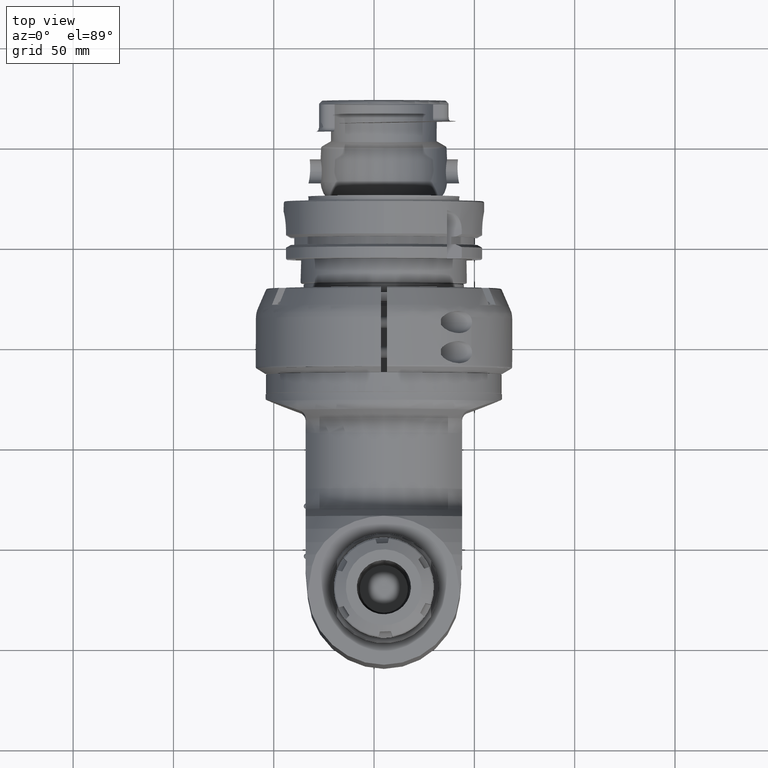
[diagram: clean part render]
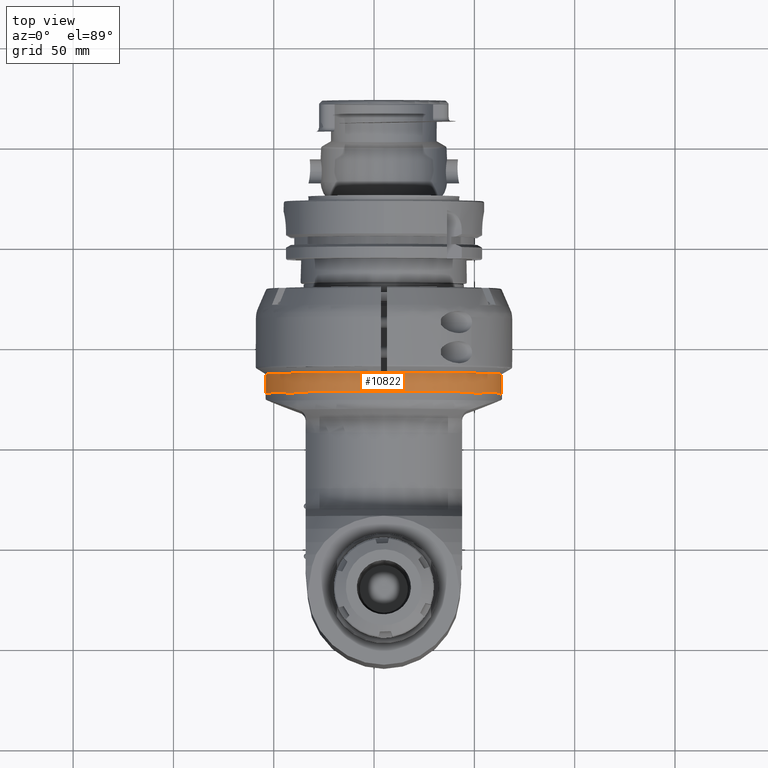
[diagram: same view with one face highlighted and labeled with its STEP entity id]
A machine part, top view. The second image highlights one B-rep face of the part: STEP entity #10822.
In plain terms, the highlighted cylindrical surface (bore or boss wall) has radius 58.8 mm, axis along (0, 1, 0).
Its self-contained STEP definition (entity closure, byte-faithful):
#1059=LINE('',#23241,#1733);
#1733=VECTOR('',#14742,58.8);
#2002=CYLINDRICAL_SURFACE('',#11988,58.8);
#2884=FACE_OUTER_BOUND('',#3583,.T.);
#3583=EDGE_LOOP('',(#9463,#9464,#9465,#9466,#9467));
#4215=CIRCLE('',#11985,58.8);
#4216=CIRCLE('',#11986,58.8);
#4218=CIRCLE('',#11989,58.8);
#5140=VERTEX_POINT('',#23231);
#5141=VERTEX_POINT('',#23232);
#5143=VERTEX_POINT('',#23239);
#6623=EDGE_CURVE('',#5140,#5141,#4215,.T.);
#6624=EDGE_CURVE('',#5141,#5140,#4216,.T.);
#6627=EDGE_CURVE('',#5143,#5143,#4218,.T.);
#6628=EDGE_CURVE('',#5143,#5140,#1059,.T.);
#9463=ORIENTED_EDGE('',*,*,#6627,.F.);
#9464=ORIENTED_EDGE('',*,*,#6628,.T.);
#9465=ORIENTED_EDGE('',*,*,#6623,.T.);
#9466=ORIENTED_EDGE('',*,*,#6624,.T.);
#9467=ORIENTED_EDGE('',*,*,#6628,.F.);
#10822=ADVANCED_FACE('',(#2884),#2002,.T.);
#11985=AXIS2_PLACEMENT_3D('',#23233,#14731,#14732);
#11986=AXIS2_PLACEMENT_3D('',#23234,#14733,#14734);
#11988=AXIS2_PLACEMENT_3D('',#23238,#14738,#14739);
#11989=AXIS2_PLACEMENT_3D('',#23240,#14740,#14741);
#14731=DIRECTION('center_axis',(-1.,0.,0.));
#14732=DIRECTION('ref_axis',(0.,-0.996194698091745,-0.087155742747664));
#14733=DIRECTION('center_axis',(-1.,0.,0.));
#14734=DIRECTION('ref_axis',(0.,-0.996194698091745,-0.087155742747664));
#14738=DIRECTION('center_axis',(-1.,0.,0.));
#14739=DIRECTION('ref_axis',(0.,-1.,0.));
#14740=DIRECTION('center_axis',(-1.,0.,0.));
#14741=DIRECTION('ref_axis',(0.,1.,0.));
#14742=DIRECTION('',(1.,0.,0.));
#23231=CARTESIAN_POINT('',(11.7,58.8,0.));
#23232=CARTESIAN_POINT('',(11.7,-58.5762482477946,-5.12475767356263));
#23233=CARTESIAN_POINT('Origin',(11.7,0.,0.));
#23234=CARTESIAN_POINT('Origin',(11.7,0.,0.));
#23238=CARTESIAN_POINT('Origin',(2.,0.,0.));
#23239=CARTESIAN_POINT('',(2.2,58.8,0.));
#23240=CARTESIAN_POINT('Origin',(2.2,0.,0.));
#23241=CARTESIAN_POINT('',(2.,58.8,-7.20092317898644E-15));